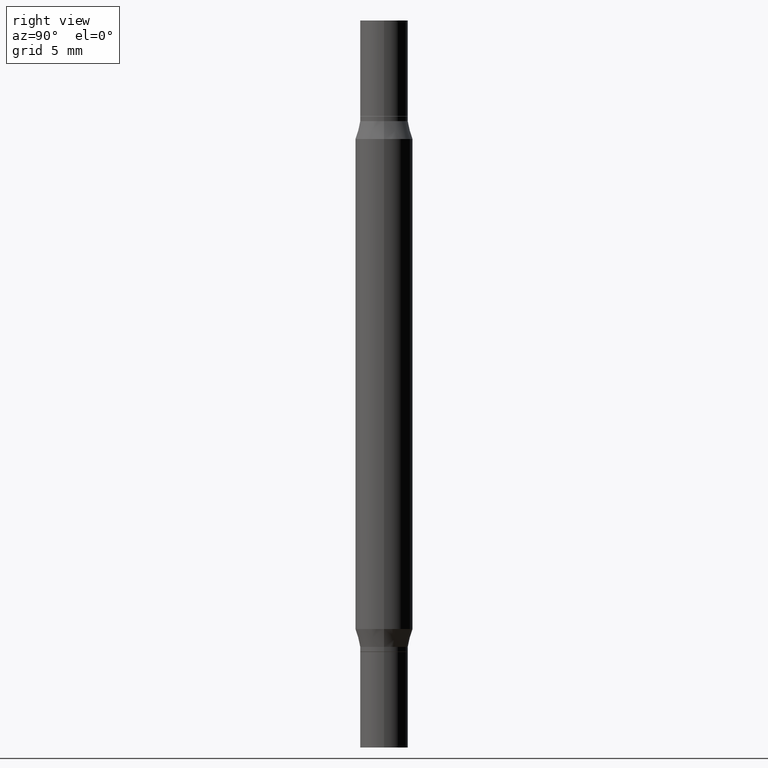
[diagram: clean part render]
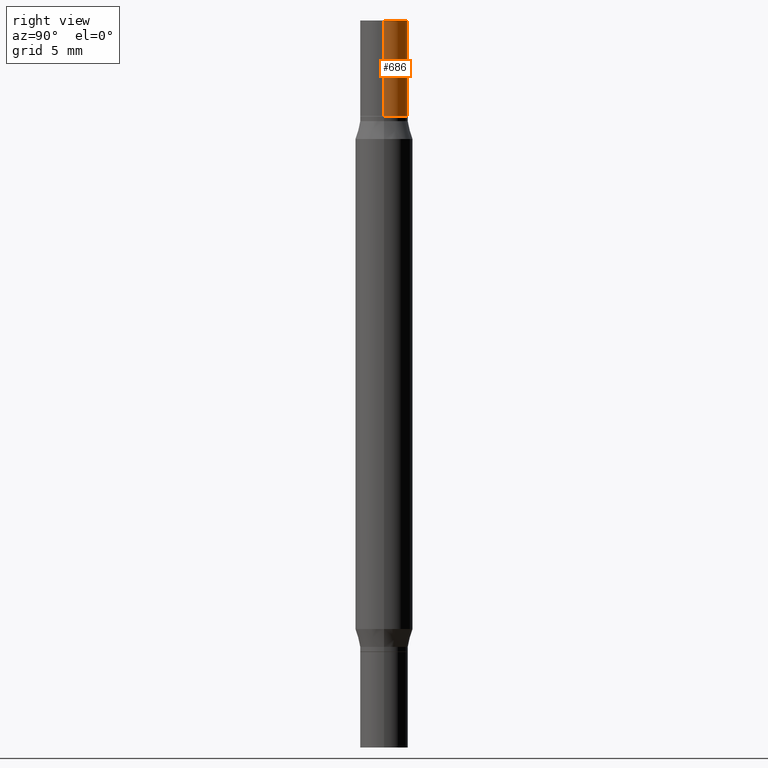
[diagram: same view with one face highlighted and labeled with its STEP entity id]
A machine part, right view. The second image highlights one B-rep face of the part: STEP entity #686.
In plain terms, the highlighted cylindrical surface (edge-blend (fillet) strip) has radius 1.2497 mm, axis along (-0, -0, -1).
Its self-contained STEP definition (entity closure, byte-faithful):
#4 = CARTESIAN_POINT ( 'NONE',  ( 0.04920000000000000068, -3.433195779781105028E-16, 1.112302229232114997E-34 ) ) ;
#6 = LINE ( 'NONE', #301, #545 ) ;
#63 = CARTESIAN_POINT ( 'NONE',  ( -0.04920000000000000068, -4.886310915316924225E-15, -1.496099999999999985 ) ) ;
#152 = VERTEX_POINT ( 'NONE', #438 ) ;
#163 = VERTEX_POINT ( 'NONE', #4 ) ;
#256 = AXIS2_PLACEMENT_3D ( 'NONE', #947, #327, #416 ) ;
#263 = DIRECTION ( 'NONE',  ( 1.000000000000000000, -6.982962677686266711E-15, 0.000000000000000000 ) ) ;
#301 = CARTESIAN_POINT ( 'NONE',  ( 0.04920000000000000068, -5.567409180549447565E-15, -1.496099999999999985 ) ) ;
#304 = ORIENTED_EDGE ( 'NONE', *, *, #481, .F. ) ;
#312 = DIRECTION ( 'NONE',  ( -2.445468806185136597E-29, -3.491805094961124077E-15, -1.000000000000000000 ) ) ;
#318 = AXIS2_PLACEMENT_3D ( 'NONE', #909, #312, #532 ) ;
#319 = CIRCLE ( 'NONE', #623, 0.04920000000000000068 ) ;
#327 = DIRECTION ( 'NONE',  ( 2.445468806185136597E-29, 3.491805094961124077E-15, 1.000000000000000000 ) ) ;
#330 = VECTOR ( 'NONE', #668, 39.37007874015748143 ) ;
#350 = LINE ( 'NONE', #63, #330 ) ;
#383 = DIRECTION ( 'NONE',  ( -2.445468806185136877E-29, -3.491805094961123683E-15, -1.000000000000000000 ) ) ;
#416 = DIRECTION ( 'NONE',  ( 1.000000000000000000, -6.982962677686266711E-15, 2.260776888683160490E-33 ) ) ;
#422 = ORIENTED_EDGE ( 'NONE', *, *, #901, .F. ) ;
#438 = CARTESIAN_POINT ( 'NONE',  ( 0.04920000000000000068, -1.030856001175955426E-15, -0.1969000000000000195 ) ) ;
#481 = EDGE_CURVE ( 'NONE', #717, #968, #350, .T. ) ;
#528 = CYLINDRICAL_SURFACE ( 'NONE', #318, 0.04920000000000000068 ) ;
#532 = DIRECTION ( 'NONE',  ( 1.000000000000000000, -6.982962677686261977E-15, 0.000000000000000000 ) ) ;
#545 = VECTOR ( 'NONE', #383, 39.37007874015748143 ) ;
#623 = AXIS2_PLACEMENT_3D ( 'NONE', #940, #646, #263 ) ;
#625 = EDGE_CURVE ( 'NONE', #163, #152, #6, .T. ) ;
#646 = DIRECTION ( 'NONE',  ( 2.445468806185136597E-29, 3.491805094961124077E-15, 1.000000000000000000 ) ) ;
#656 = CARTESIAN_POINT ( 'NONE',  ( -0.04920000000000000068, -5.989524344509276303E-18, -0.1969000000000000195 ) ) ;
#668 = DIRECTION ( 'NONE',  ( -2.445468806185136877E-29, -3.491805094961123683E-15, -1.000000000000000000 ) ) ;
#682 = FACE_OUTER_BOUND ( 'NONE', #880, .T. ) ;
#686 = ADVANCED_FACE ( 'NONE', ( #682 ), #528, .T. ) ;
#688 = CIRCLE ( 'NONE', #256, 0.04920000000000000068 ) ;
#716 = ORIENTED_EDGE ( 'NONE', *, *, #625, .T. ) ;
#717 = VERTEX_POINT ( 'NONE', #853 ) ;
#853 = CARTESIAN_POINT ( 'NONE',  ( -0.04920000000000000068, -5.989524344509276303E-18, 1.224930569750488453E-30 ) ) ;
#854 = ORIENTED_EDGE ( 'NONE', *, *, #931, .T. ) ;
#880 = EDGE_LOOP ( 'NONE', ( #304, #422, #716, #854 ) ) ;
#901 = EDGE_CURVE ( 'NONE', #163, #717, #688, .T. ) ;
#909 = CARTESIAN_POINT ( 'NONE',  ( 0.000000000000000000, -5.223847416807283040E-15, -1.496099999999999985 ) ) ;
#931 = EDGE_CURVE ( 'NONE', #152, #968, #319, .T. ) ;
#940 = CARTESIAN_POINT ( 'NONE',  ( 3.177153072995728757E-29, -6.872942374337910995E-16, -0.1969000000000000195 ) ) ;
#947 = CARTESIAN_POINT ( 'NONE',  ( 3.658665880933582389E-29, 2.421857640538043390E-19, 0.000000000000000000 ) ) ;
#968 = VERTEX_POINT ( 'NONE', #656 ) ;